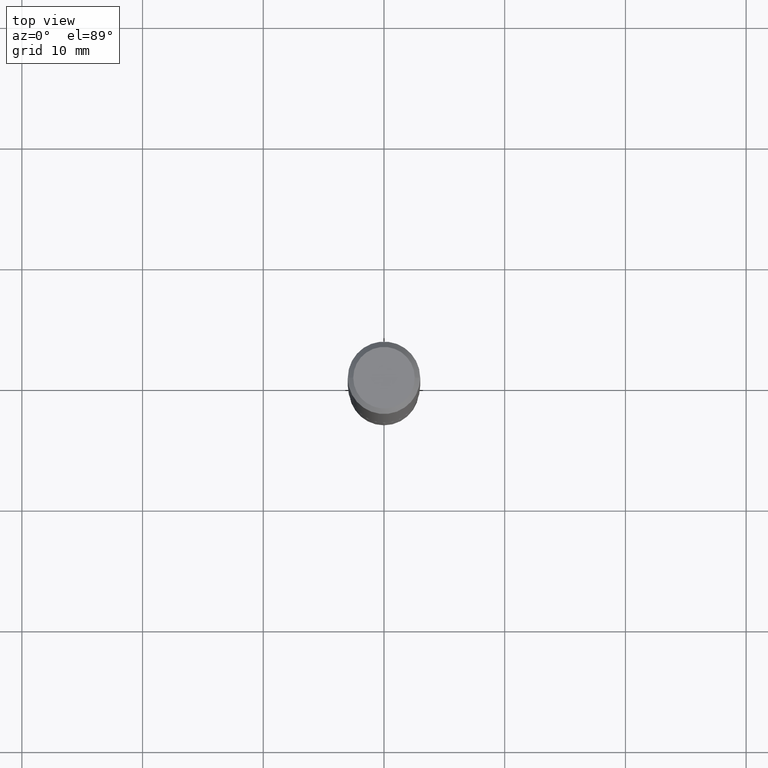
[diagram: clean part render]
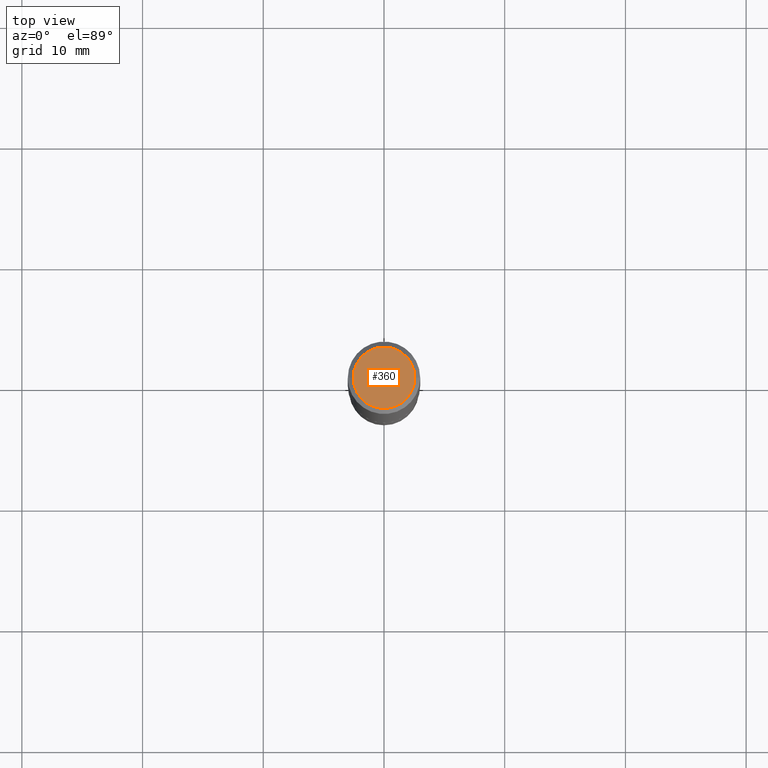
[diagram: same view with one face highlighted and labeled with its STEP entity id]
A machine part, top view. The second image highlights one B-rep face of the part: STEP entity #360.
In plain terms, the highlighted planar face has unit normal (0, -0, -1).
Its self-contained STEP definition (entity closure, byte-faithful):
#2 = DIRECTION ( 'NONE',  ( 2.438088387897960049E-29, -3.491481338843145188E-15, -1.000000000000000000 ) ) ;
#3 = CARTESIAN_POINT ( 'NONE',  ( 4.008699684532606202E-46, -5.723360734012321624E-32, -1.639235664913700718E-17 ) ) ;
#28 = AXIS2_PLACEMENT_3D ( 'NONE', #273, #425, #99 ) ;
#35 = FACE_OUTER_BOUND ( 'NONE', #304, .T. ) ;
#57 = CARTESIAN_POINT ( 'NONE',  ( 8.017399369065212404E-46, -1.144672146802464325E-31, -3.278471329827401435E-17 ) ) ;
#99 = DIRECTION ( 'NONE',  ( 1.000000000000000000, -6.982962677686266711E-15, 4.875668750515089058E-29 ) ) ;
#123 = AXIS2_PLACEMENT_3D ( 'NONE', #57, #158, #303 ) ;
#158 = DIRECTION ( 'NONE',  ( -2.445468806185136597E-29, 3.491481338843145583E-15, 1.000000000000000000 ) ) ;
#174 = EDGE_CURVE ( 'NONE', #410, #196, #287, .T. ) ;
#177 = CARTESIAN_POINT ( 'NONE',  ( -0.1003849999999999465, 7.319105043583382745E-16, -3.278471329827902485E-17 ) ) ;
#196 = VERTEX_POINT ( 'NONE', #413 ) ;
#213 = DIRECTION ( 'NONE',  ( -1.000000000000000000, 6.982962677686265922E-15, -4.876176775795935793E-29 ) ) ;
#226 = ORIENTED_EDGE ( 'NONE', *, *, #174, .T. ) ;
#273 = CARTESIAN_POINT ( 'NONE',  ( 8.017399369065212404E-46, -1.144672146802464325E-31, -3.278471329827401435E-17 ) ) ;
#287 = CIRCLE ( 'NONE', #123, 0.1003849999999999465 ) ;
#303 = DIRECTION ( 'NONE',  ( 1.000000000000000000, -6.982962677686266711E-15, 4.875668750515089058E-29 ) ) ;
#304 = EDGE_LOOP ( 'NONE', ( #226, #313 ) ) ;
#313 = ORIENTED_EDGE ( 'NONE', *, *, #389, .T. ) ;
#319 = PLANE ( 'NONE',  #395 ) ;
#360 = ADVANCED_FACE ( 'NONE', ( #35 ), #319, .F. ) ;
#389 = EDGE_CURVE ( 'NONE', #196, #410, #457, .T. ) ;
#395 = AXIS2_PLACEMENT_3D ( 'NONE', #3, #2, #213 ) ;
#410 = VERTEX_POINT ( 'NONE', #177 ) ;
#413 = CARTESIAN_POINT ( 'NONE',  ( 0.1003849999999999465, -7.803837484803597373E-16, -3.278471329826883745E-17 ) ) ;
#425 = DIRECTION ( 'NONE',  ( -2.445468806185136597E-29, 3.491481338843145583E-15, 1.000000000000000000 ) ) ;
#457 = CIRCLE ( 'NONE', #28, 0.1003849999999999465 ) ;